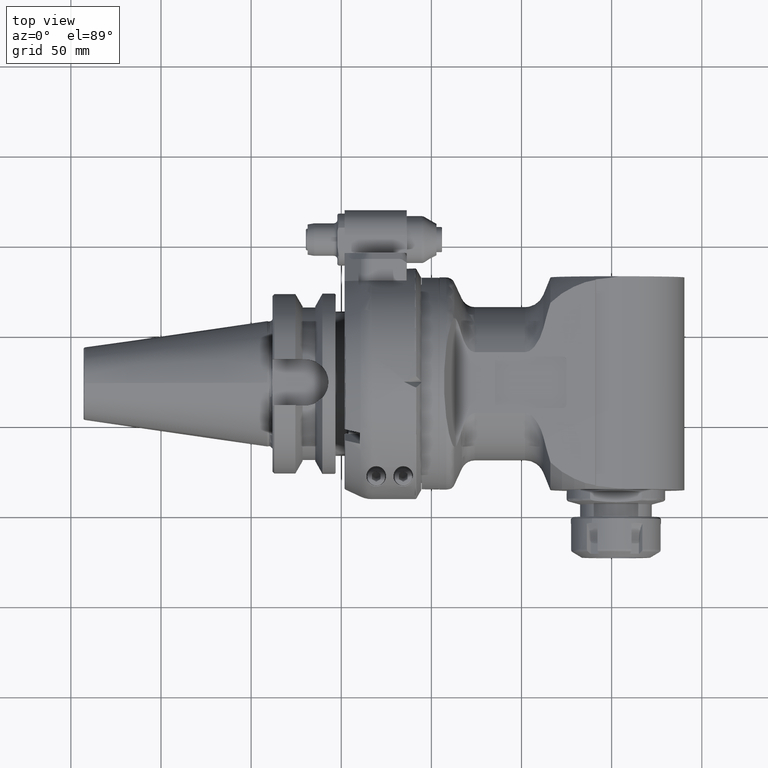
[diagram: clean part render]
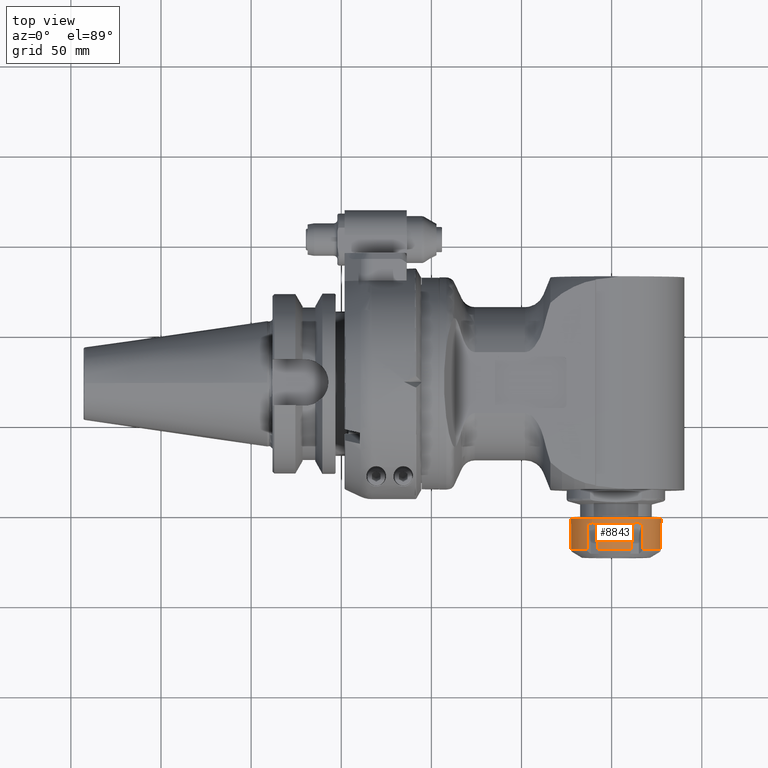
[diagram: same view with one face highlighted and labeled with its STEP entity id]
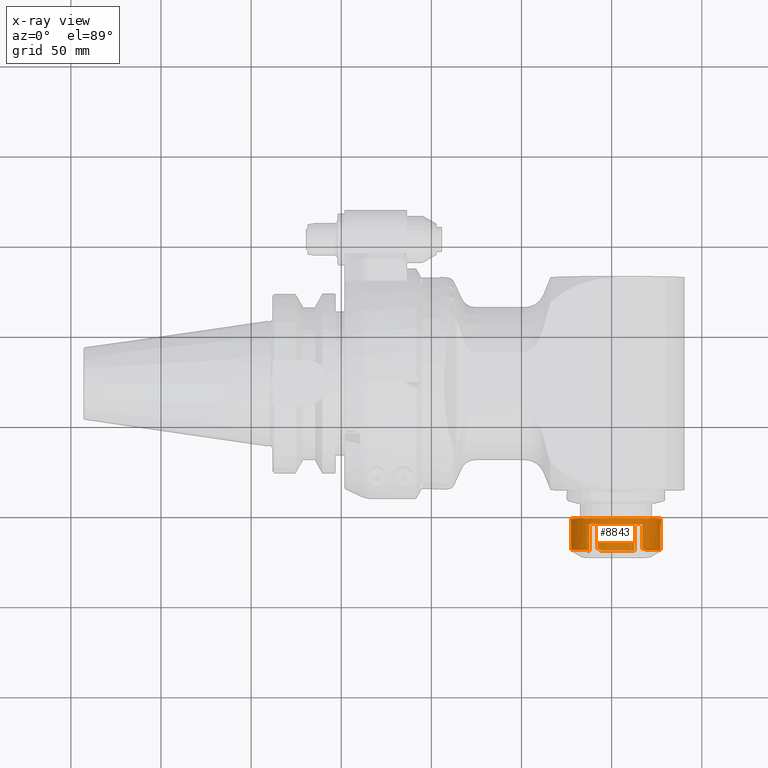
[diagram: x-ray of the same camera — body ghosted, the highlighted face saturated]
A machine part, top view. The second image highlights one B-rep face of the part: STEP entity #8843.
The next image is the same camera in x-ray: the body ghosted, the highlighted face saturated — about 5% of this face is hidden behind the body in this view.
In plain terms, the highlighted cylindrical surface (bore or boss wall) has radius 25 mm, axis along (0, -1, -0).
Its self-contained STEP definition (entity closure, byte-faithful):
#305=B_SPLINE_CURVE_WITH_KNOTS('',3,(#30281,#30282,#30283,#30284,#30285,
#30286,#30287,#30288,#30289,#30290),.UNSPECIFIED.,.F.,.F.,(4,2,2,2,4),(1.2833686320491,
1.29546874107736,1.61589836925921,1.93632799744106,1.94842810647175),
 .UNSPECIFIED.);
#306=B_SPLINE_CURVE_WITH_KNOTS('',3,(#30298,#30299,#30300,#30301,#30302,
#30303,#30304,#30305,#30306,#30307),.UNSPECIFIED.,.F.,.F.,(4,2,2,2,4),(1.28336863205176,
1.29546874107993,1.61589836926244,1.93632799744495,1.94842810647282),
 .UNSPECIFIED.);
#307=B_SPLINE_CURVE_WITH_KNOTS('',3,(#30315,#30316,#30317,#30318,#30319,
#30320,#30321,#30322,#30323,#30324),.UNSPECIFIED.,.F.,.F.,(4,2,2,2,4),(1.28336863205147,
1.29546874107986,1.61589836926236,1.93632799744485,1.94842810647336),
 .UNSPECIFIED.);
#308=B_SPLINE_CURVE_WITH_KNOTS('',3,(#30332,#30333,#30334,#30335,#30336,
#30337),.UNSPECIFIED.,.F.,.F.,(4,2,4),(-1.94842810647349,-1.93632799744448,
-1.61589836926205),.UNSPECIFIED.);
#309=B_SPLINE_CURVE_WITH_KNOTS('',3,(#30340,#30341,#30342,#30343,#30344,
#30345),.UNSPECIFIED.,.F.,.F.,(4,2,4),(-1.61589836926205,-1.29546874107962,
-1.28336863205084),.UNSPECIFIED.);
#310=B_SPLINE_CURVE_WITH_KNOTS('',3,(#30353,#30354,#30355,#30356,#30357,
#30358,#30359,#30360,#30361,#30362),.UNSPECIFIED.,.F.,.F.,(4,2,2,2,4),(1.28336863205397,
1.29546874107995,1.61589836926247,1.93632799744499,1.94842810647285),
 .UNSPECIFIED.);
#311=B_SPLINE_CURVE_WITH_KNOTS('',3,(#30370,#30371,#30372,#30373,#30374,
#30375,#30376,#30377,#30378,#30379),.UNSPECIFIED.,.F.,.F.,(4,2,2,2,4),(1.28336863204639,
1.29546874107565,1.61589836925705,1.93632799743846,1.94842810646706),
 .UNSPECIFIED.);
#412=CYLINDRICAL_SURFACE('',#9780,25.);
#908=CIRCLE('',#9779,25.);
#909=CIRCLE('',#9781,25.);
#910=CIRCLE('',#9782,25.);
#911=CIRCLE('',#9783,25.);
#912=CIRCLE('',#9784,25.);
#913=CIRCLE('',#9785,25.);
#914=CIRCLE('',#9786,25.);
#1393=FACE_OUTER_BOUND('',#1961,.T.);
#1961=EDGE_LOOP('',(#7681,#7682,#7683,#7684,#7685,#7686,#7687,#7688,#7689,
#7690,#7691,#7692,#7693,#7694,#7695,#7696,#7697,#7698,#7699,#7700,#7701,
#7702,#7703,#7704,#7705,#7706,#7707,#7708));
#2696=LINE('',#30292,#3244);
#2697=LINE('',#30296,#3245);
#2698=LINE('',#30309,#3246);
#2699=LINE('',#30313,#3247);
#2700=LINE('',#30326,#3248);
#2701=LINE('',#30330,#3249);
#2702=LINE('',#30338,#3250);
#2703=LINE('',#30347,#3251);
#2704=LINE('',#30351,#3252);
#2705=LINE('',#30364,#3253);
#2706=LINE('',#30368,#3254);
#2707=LINE('',#30381,#3255);
#2708=LINE('',#30384,#3256);
#3244=VECTOR('',#11973,14.29830773003);
#3245=VECTOR('',#11976,14.29830773003);
#3246=VECTOR('',#11977,14.29830773003);
#3247=VECTOR('',#11980,14.29830773003);
#3248=VECTOR('',#11981,14.29830773003);
#3249=VECTOR('',#11984,14.29830773003);
#3250=VECTOR('',#11985,25.);
#3251=VECTOR('',#11986,14.29830773003);
#3252=VECTOR('',#11989,14.29830773003);
#3253=VECTOR('',#11990,14.29830773003);
#3254=VECTOR('',#11993,14.29830773003);
#3255=VECTOR('',#11994,14.29830773003);
#3256=VECTOR('',#11997,14.29830773003);
#4074=VERTEX_POINT('',#30275);
#4075=VERTEX_POINT('',#30279);
#4076=VERTEX_POINT('',#30280);
#4077=VERTEX_POINT('',#30291);
#4078=VERTEX_POINT('',#30293);
#4079=VERTEX_POINT('',#30295);
#4080=VERTEX_POINT('',#30297);
#4081=VERTEX_POINT('',#30308);
#4082=VERTEX_POINT('',#30310);
#4083=VERTEX_POINT('',#30312);
#4084=VERTEX_POINT('',#30314);
#4085=VERTEX_POINT('',#30325);
#4086=VERTEX_POINT('',#30327);
#4087=VERTEX_POINT('',#30329);
#4088=VERTEX_POINT('',#30331);
#4089=VERTEX_POINT('',#30339);
#4090=VERTEX_POINT('',#30346);
#4091=VERTEX_POINT('',#30348);
#4092=VERTEX_POINT('',#30350);
#4093=VERTEX_POINT('',#30352);
#4094=VERTEX_POINT('',#30363);
#4095=VERTEX_POINT('',#30365);
#4096=VERTEX_POINT('',#30367);
#4097=VERTEX_POINT('',#30369);
#4098=VERTEX_POINT('',#30380);
#4099=VERTEX_POINT('',#30382);
#5306=EDGE_CURVE('',#4074,#4074,#908,.T.);
#5308=EDGE_CURVE('',#4075,#4076,#305,.T.);
#5309=EDGE_CURVE('',#4075,#4077,#2696,.T.);
#5310=EDGE_CURVE('',#4078,#4077,#909,.T.);
#5311=EDGE_CURVE('',#4078,#4079,#2697,.T.);
#5312=EDGE_CURVE('',#4080,#4079,#306,.T.);
#5313=EDGE_CURVE('',#4080,#4081,#2698,.T.);
#5314=EDGE_CURVE('',#4082,#4081,#910,.T.);
#5315=EDGE_CURVE('',#4082,#4083,#2699,.T.);
#5316=EDGE_CURVE('',#4084,#4083,#307,.T.);
#5317=EDGE_CURVE('',#4084,#4085,#2700,.T.);
#5318=EDGE_CURVE('',#4086,#4085,#911,.T.);
#5319=EDGE_CURVE('',#4086,#4087,#2701,.T.);
#5320=EDGE_CURVE('',#4088,#4087,#308,.F.);
#5321=EDGE_CURVE('',#4088,#4074,#2702,.T.);
#5322=EDGE_CURVE('',#4089,#4088,#309,.F.);
#5323=EDGE_CURVE('',#4089,#4090,#2703,.T.);
#5324=EDGE_CURVE('',#4091,#4090,#912,.T.);
#5325=EDGE_CURVE('',#4091,#4092,#2704,.T.);
#5326=EDGE_CURVE('',#4093,#4092,#310,.T.);
#5327=EDGE_CURVE('',#4093,#4094,#2705,.T.);
#5328=EDGE_CURVE('',#4095,#4094,#913,.T.);
#5329=EDGE_CURVE('',#4095,#4096,#2706,.T.);
#5330=EDGE_CURVE('',#4097,#4096,#311,.T.);
#5331=EDGE_CURVE('',#4097,#4098,#2707,.T.);
#5332=EDGE_CURVE('',#4099,#4098,#914,.T.);
#5333=EDGE_CURVE('',#4099,#4076,#2708,.T.);
#7681=ORIENTED_EDGE('',*,*,#5308,.F.);
#7682=ORIENTED_EDGE('',*,*,#5309,.T.);
#7683=ORIENTED_EDGE('',*,*,#5310,.F.);
#7684=ORIENTED_EDGE('',*,*,#5311,.T.);
#7685=ORIENTED_EDGE('',*,*,#5312,.F.);
#7686=ORIENTED_EDGE('',*,*,#5313,.T.);
#7687=ORIENTED_EDGE('',*,*,#5314,.F.);
#7688=ORIENTED_EDGE('',*,*,#5315,.T.);
#7689=ORIENTED_EDGE('',*,*,#5316,.F.);
#7690=ORIENTED_EDGE('',*,*,#5317,.T.);
#7691=ORIENTED_EDGE('',*,*,#5318,.F.);
#7692=ORIENTED_EDGE('',*,*,#5319,.T.);
#7693=ORIENTED_EDGE('',*,*,#5320,.F.);
#7694=ORIENTED_EDGE('',*,*,#5321,.T.);
#7695=ORIENTED_EDGE('',*,*,#5306,.F.);
#7696=ORIENTED_EDGE('',*,*,#5321,.F.);
#7697=ORIENTED_EDGE('',*,*,#5322,.F.);
#7698=ORIENTED_EDGE('',*,*,#5323,.T.);
#7699=ORIENTED_EDGE('',*,*,#5324,.F.);
#7700=ORIENTED_EDGE('',*,*,#5325,.T.);
#7701=ORIENTED_EDGE('',*,*,#5326,.F.);
#7702=ORIENTED_EDGE('',*,*,#5327,.T.);
#7703=ORIENTED_EDGE('',*,*,#5328,.F.);
#7704=ORIENTED_EDGE('',*,*,#5329,.T.);
#7705=ORIENTED_EDGE('',*,*,#5330,.F.);
#7706=ORIENTED_EDGE('',*,*,#5331,.T.);
#7707=ORIENTED_EDGE('',*,*,#5332,.F.);
#7708=ORIENTED_EDGE('',*,*,#5333,.T.);
#8843=ADVANCED_FACE('',(#1393),#412,.T.);
#9779=AXIS2_PLACEMENT_3D('',#30276,#11968,#11969);
#9780=AXIS2_PLACEMENT_3D('',#30278,#11971,#11972);
#9781=AXIS2_PLACEMENT_3D('',#30294,#11974,#11975);
#9782=AXIS2_PLACEMENT_3D('',#30311,#11978,#11979);
#9783=AXIS2_PLACEMENT_3D('',#30328,#11982,#11983);
#9784=AXIS2_PLACEMENT_3D('',#30349,#11987,#11988);
#9785=AXIS2_PLACEMENT_3D('',#30366,#11991,#11992);
#9786=AXIS2_PLACEMENT_3D('',#30383,#11995,#11996);
#11968=DIRECTION('center_axis',(0.,1.,0.));
#11969=DIRECTION('ref_axis',(-0.529933890699467,0.,0.848038956350547));
#11971=DIRECTION('center_axis',(0.,-1.,0.));
#11972=DIRECTION('ref_axis',(0.529933890699467,0.,-0.848038956350547));
#11973=DIRECTION('',(-1.888378993423E-14,-1.,3.031345226284E-14));
#11974=DIRECTION('center_axis',(0.,-1.,0.));
#11975=DIRECTION('ref_axis',(-0.34166268719178,0.,-0.939822647195146));
#11976=DIRECTION('',(1.093272048824E-14,1.,0.));
#11977=DIRECTION('',(2.882262674172E-14,-1.,2.186544097647E-14));
#11978=DIRECTION('center_axis',(0.,-1.,0.));
#11979=DIRECTION('ref_axis',(-0.984741631118832,0.,-0.174022756964206));
#11980=DIRECTION('',(0.,1.,-1.192660416899E-14));
#11981=DIRECTION('',(3.379204514546E-14,-1.,0.));
#11982=DIRECTION('center_axis',(0.,-1.,0.));
#11983=DIRECTION('ref_axis',(-0.643078943927024,0.,0.765799890230929));
#11984=DIRECTION('',(-1.391437153049E-14,1.,0.));
#11985=DIRECTION('',(0.,1.,0.));
#11986=DIRECTION('',(-2.087155729573E-14,-1.,-4.720947483558E-14));
#11987=DIRECTION('center_axis',(0.,-1.,0.));
#11988=DIRECTION('ref_axis',(0.341662687191812,0.,0.939822647195134));
#11989=DIRECTION('',(-2.484709201873E-14,1.,1.615060981217E-14));
#11990=DIRECTION('',(-3.279816146471E-14,-1.,-2.559250477928E-14));
#11991=DIRECTION('center_axis',(0.,-1.,0.));
#11992=DIRECTION('ref_axis',(0.984741631118832,0.,0.174022756964206));
#11993=DIRECTION('',(0.,1.,0.));
#11994=DIRECTION('',(-4.174311459145E-14,-1.,0.));
#11995=DIRECTION('center_axis',(0.,-1.,0.));
#11996=DIRECTION('ref_axis',(0.643078943927024,0.,-0.765799890230929));
#11997=DIRECTION('',(0.,1.,0.));
#30275=CARTESIAN_POINT('',(96.75165273251,-75.,21.20097390876));
#30276=CARTESIAN_POINT('Origin',(110.,-75.,6.471299424077E-14));
#30278=CARTESIAN_POINT('Origin',(110.,-83.5,6.518483902624E-14));
#30279=CARTESIAN_POINT('',(120.160516134,-77.83566686619,-22.84215208536));
#30280=CARTESIAN_POINT('',(126.0769735982,-77.83566686619,-19.14499725577));
#30281=CARTESIAN_POINT('Ctrl Pts',(120.160516134002,-77.8356668661983,-22.8421520853594));
#30282=CARTESIAN_POINT('Ctrl Pts',(120.199744558307,-77.8272006773188,-22.8247027208436));
#30283=CARTESIAN_POINT('Ctrl Pts',(120.238964364057,-77.8189000401072,-22.8071361206508));
#30284=CARTESIAN_POINT('Ctrl Pts',(121.316373475687,-77.5953369935485,-22.3212189231742));
#30285=CARTESIAN_POINT('Ctrl Pts',(122.342557909263,-77.5000000000137,-21.7669956406229));
#30286=CARTESIAN_POINT('Ctrl Pts',(124.15413662571,-77.5000000000137,-20.6349521769043));
#30287=CARTESIAN_POINT('Ctrl Pts',(125.102095424081,-77.5953369935485,-19.9555465136752));
#30288=CARTESIAN_POINT('Ctrl Pts',(126.011113919719,-77.8189000401088,-19.2001583411206));
#30289=CARTESIAN_POINT('Ctrl Pts',(126.044094556275,-77.8272006773221,-19.172607366211));
#30290=CARTESIAN_POINT('Ctrl Pts',(126.076973598189,-77.8356668662034,-19.1449972557616));
#30291=CARTESIAN_POINT('',(120.160516134,-92.13397459622,-22.84215208536));
#30292=CARTESIAN_POINT('',(120.160516134,-77.83566686618,-22.84215208536));
#30293=CARTESIAN_POINT('',(101.4584328202,-92.13397459622,-23.49556617988));
#30294=CARTESIAN_POINT('Origin',(110.,-92.13397459622,6.566412089578E-14));
#30295=CARTESIAN_POINT('',(101.4584328202,-77.83566686619,-23.49556617987));
#30296=CARTESIAN_POINT('',(101.4584328202,-92.13397459622,-23.49556617988));
#30297=CARTESIAN_POINT('',(95.29837408397,-77.83566686619,-20.22034113028));
#30298=CARTESIAN_POINT('Ctrl Pts',(95.2983740839662,-77.8356668661823,-20.2203411302827));
#30299=CARTESIAN_POINT('Ctrl Pts',(95.3330998890692,-77.8272006773028,-20.2455892600233));
#30300=CARTESIAN_POINT('Ctrl Pts',(95.367922913969,-77.8189000400913,-20.2707713080377));
#30301=CARTESIAN_POINT('Ctrl Pts',(96.327444106936,-77.5953369935324,-20.9608763702414));
#30302=CARTESIAN_POINT('Ctrl Pts',(97.3205077657842,-77.4999999999975,-21.5724665174122));
#30303=CARTESIAN_POINT('Ctrl Pts',(99.2066755217802,-77.4999999999975,-22.5753179749538));
#30304=CARTESIAN_POINT('Ctrl Pts',(100.269037484799,-77.5953369935324,-23.0565715444699));
#30305=CARTESIAN_POINT('Ctrl Pts',(101.377732079762,-77.8189000400911,-23.4661105679221));
#30306=CARTESIAN_POINT('Ctrl Pts',(101.418082242201,-77.8272006773024,-23.4808971495548));
#30307=CARTESIAN_POINT('Ctrl Pts',(101.458432820199,-77.8356668661817,-23.4955661798764));
#30308=CARTESIAN_POINT('',(95.29837408396,-92.13397459622,-20.22034113028));
#30309=CARTESIAN_POINT('',(95.29837408396,-77.83566686619,-20.22034113028));
#30310=CARTESIAN_POINT('',(85.38145922203,-92.13397459622,-4.350568924106));
#30311=CARTESIAN_POINT('Origin',(110.,-92.13397459622,6.566412089578E-14));
#30312=CARTESIAN_POINT('',(85.38145922203,-77.83566686619,-4.350568924105));
#30313=CARTESIAN_POINT('',(85.38145922203,-92.13397459622,-4.350568924106));
#30314=CARTESIAN_POINT('',(85.13785794997,-77.83566686618,2.621810955082));
#30315=CARTESIAN_POINT('Ctrl Pts',(85.1378579499711,-77.8356668661832,2.62181095508125));
#30316=CARTESIAN_POINT('Ctrl Pts',(85.1333553307691,-77.8272006773036,2.5791134608241));
#30317=CARTESIAN_POINT('Ctrl Pts',(85.1289585499191,-77.8189000400919,2.53636481261629));
#30318=CARTESIAN_POINT('Ctrl Pts',(85.0110706312539,-77.5953369935328,1.36034255293476));
#30319=CARTESIAN_POINT('Ctrl Pts',(84.9779498565238,-77.4999999999979,0.194529123211796));
#30320=CARTESIAN_POINT('Ctrl Pts',(85.0525388960686,-77.4999999999979,-1.94036579805058));
#30321=CARTESIAN_POINT('Ctrl Pts',(85.1669420607152,-77.5953369935329,-3.10102503079719));
#30322=CARTESIAN_POINT('Ctrl Pts',(85.3666181600462,-77.818900040092,-4.26595222680157));
#30323=CARTESIAN_POINT('Ctrl Pts',(85.3739876859373,-77.8272006773037,-4.30828978333963));
#30324=CARTESIAN_POINT('Ctrl Pts',(85.3814592220294,-77.8356668661834,-4.35056892410641));
#30325=CARTESIAN_POINT('',(85.13785794997,-92.13397459622,2.621810955082));
#30326=CARTESIAN_POINT('',(85.13785794997,-77.83566686618,2.621810955082));
#30327=CARTESIAN_POINT('',(93.92302640182,-92.13397459622,19.14499725577));
#30328=CARTESIAN_POINT('Origin',(110.,-92.13397459622,6.566412089578E-14));
#30329=CARTESIAN_POINT('',(93.92302640182,-77.83566686619,19.14499725577));
#30330=CARTESIAN_POINT('',(93.92302640182,-92.13397459622,19.14499725577));
#30331=CARTESIAN_POINT('',(96.7516527325133,-77.4999999999994,21.2009739087637));
#30332=CARTESIAN_POINT('Ctrl Pts',(93.9230264018196,-77.835666866186,19.1449972557693));
#30333=CARTESIAN_POINT('Ctrl Pts',(93.9559054437291,-77.8272006773059,19.1726073662149));
#30334=CARTESIAN_POINT('Ctrl Pts',(93.988886080281,-77.8189000400938,19.2001583411206));
#30335=CARTESIAN_POINT('Ctrl Pts',(94.8979045759158,-77.5953369935343,19.955546513673));
#30336=CARTESIAN_POINT('Ctrl Pts',(95.8458633742879,-77.4999999999994,20.6349521769034));
#30337=CARTESIAN_POINT('Ctrl Pts',(96.7516527325133,-77.4999999999994,21.2009739087638));
#30338=CARTESIAN_POINT('',(96.7516527325133,-83.5,21.2009739087637));
#30339=CARTESIAN_POINT('',(99.83948386601,-77.83566686619,22.84215208536));
#30340=CARTESIAN_POINT('Ctrl Pts',(96.7516527325133,-77.4999999999994,21.2009739087638));
#30341=CARTESIAN_POINT('Ctrl Pts',(97.6574420907387,-77.4999999999994,21.7669956406241));
#30342=CARTESIAN_POINT('Ctrl Pts',(98.6836265243167,-77.5953369935344,22.3212189231762));
#30343=CARTESIAN_POINT('Ctrl Pts',(99.7610356359505,-77.8189000400936,22.8071361206542));
#30344=CARTESIAN_POINT('Ctrl Pts',(99.8002554417021,-77.8272006773056,22.8247027208477));
#30345=CARTESIAN_POINT('Ctrl Pts',(99.839483866009,-77.8356668661855,22.8421520853643));
#30346=CARTESIAN_POINT('',(99.83948386601,-92.13397459622,22.84215208536));
#30347=CARTESIAN_POINT('',(99.83948386601,-77.83566686619,22.84215208536));
#30348=CARTESIAN_POINT('',(118.5415671798,-92.13397459622,23.49556617988));
#30349=CARTESIAN_POINT('Origin',(110.,-92.13397459622,6.566412089578E-14));
#30350=CARTESIAN_POINT('',(118.5415671798,-77.83566686619,23.49556617987));
#30351=CARTESIAN_POINT('',(118.5415671798,-92.13397459622,23.49556617988));
#30352=CARTESIAN_POINT('',(124.701625916,-77.83566686619,20.22034113028));
#30353=CARTESIAN_POINT('Ctrl Pts',(124.701625916015,-77.8356668661776,20.2203411302965));
#30354=CARTESIAN_POINT('Ctrl Pts',(124.666900110918,-77.8272006772997,20.2455892600325));
#30355=CARTESIAN_POINT('Ctrl Pts',(124.632077086025,-77.8189000400897,20.2707713080423));
#30356=CARTESIAN_POINT('Ctrl Pts',(123.672555893064,-77.5953369935323,20.9608763702415));
#30357=CARTESIAN_POINT('Ctrl Pts',(122.679492234216,-77.4999999999974,21.5724665174123));
#30358=CARTESIAN_POINT('Ctrl Pts',(120.79332447822,-77.4999999999974,22.5753179749539));
#30359=CARTESIAN_POINT('Ctrl Pts',(119.730962515201,-77.5953369935323,23.05657154447));
#30360=CARTESIAN_POINT('Ctrl Pts',(118.622267920238,-77.818900040091,23.4661105679223));
#30361=CARTESIAN_POINT('Ctrl Pts',(118.581917757799,-77.8272006773023,23.4808971495549));
#30362=CARTESIAN_POINT('Ctrl Pts',(118.541567179801,-77.8356668661816,23.4955661798765));
#30363=CARTESIAN_POINT('',(124.701625916,-92.13397459622,20.22034113028));
#30364=CARTESIAN_POINT('',(124.701625916,-77.83566686619,20.22034113028));
#30365=CARTESIAN_POINT('',(134.618540778,-92.13397459622,4.350568924106));
#30366=CARTESIAN_POINT('Origin',(110.,-92.13397459622,6.566412089578E-14));
#30367=CARTESIAN_POINT('',(134.618540778,-77.83566686619,4.350568924105));
#30368=CARTESIAN_POINT('',(134.618540778,-92.13397459622,4.350568924106));
#30369=CARTESIAN_POINT('',(134.86214205,-77.83566686618,-2.621810955082));
#30370=CARTESIAN_POINT('Ctrl Pts',(134.862142050029,-77.835666866211,-2.62181095507892));
#30371=CARTESIAN_POINT('Ctrl Pts',(134.866644669231,-77.8272006773307,-2.57911346081871));
#30372=CARTESIAN_POINT('Ctrl Pts',(134.871041450082,-77.8189000401184,-2.53636481260784));
#30373=CARTESIAN_POINT('Ctrl Pts',(134.988929368746,-77.5953369935593,-1.36034255292705));
#30374=CARTESIAN_POINT('Ctrl Pts',(135.022050143476,-77.5000000000246,-0.194529123208044));
#30375=CARTESIAN_POINT('Ctrl Pts',(134.947461103931,-77.5000000000246,1.94036579804709));
#30376=CARTESIAN_POINT('Ctrl Pts',(134.833057939286,-77.5953369935593,3.10102503078979));
#30377=CARTESIAN_POINT('Ctrl Pts',(134.633381839956,-77.818900040118,4.26595222679073));
#30378=CARTESIAN_POINT('Ctrl Pts',(134.626012314065,-77.8272006773298,4.3082897833291));
#30379=CARTESIAN_POINT('Ctrl Pts',(134.618540777972,-77.8356668662096,4.35056892409619));
#30380=CARTESIAN_POINT('',(134.86214205,-92.13397459622,-2.621810955082));
#30381=CARTESIAN_POINT('',(134.86214205,-77.83566686618,-2.621810955082));
#30382=CARTESIAN_POINT('',(126.0769735982,-92.13397459622,-19.14499725577));
#30383=CARTESIAN_POINT('Origin',(110.,-92.13397459622,6.566412089578E-14));
#30384=CARTESIAN_POINT('',(126.0769735982,-92.13397459622,-19.14499725577));